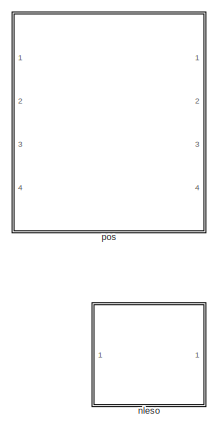
[diagram: root canvas - part 1/2, top right region]
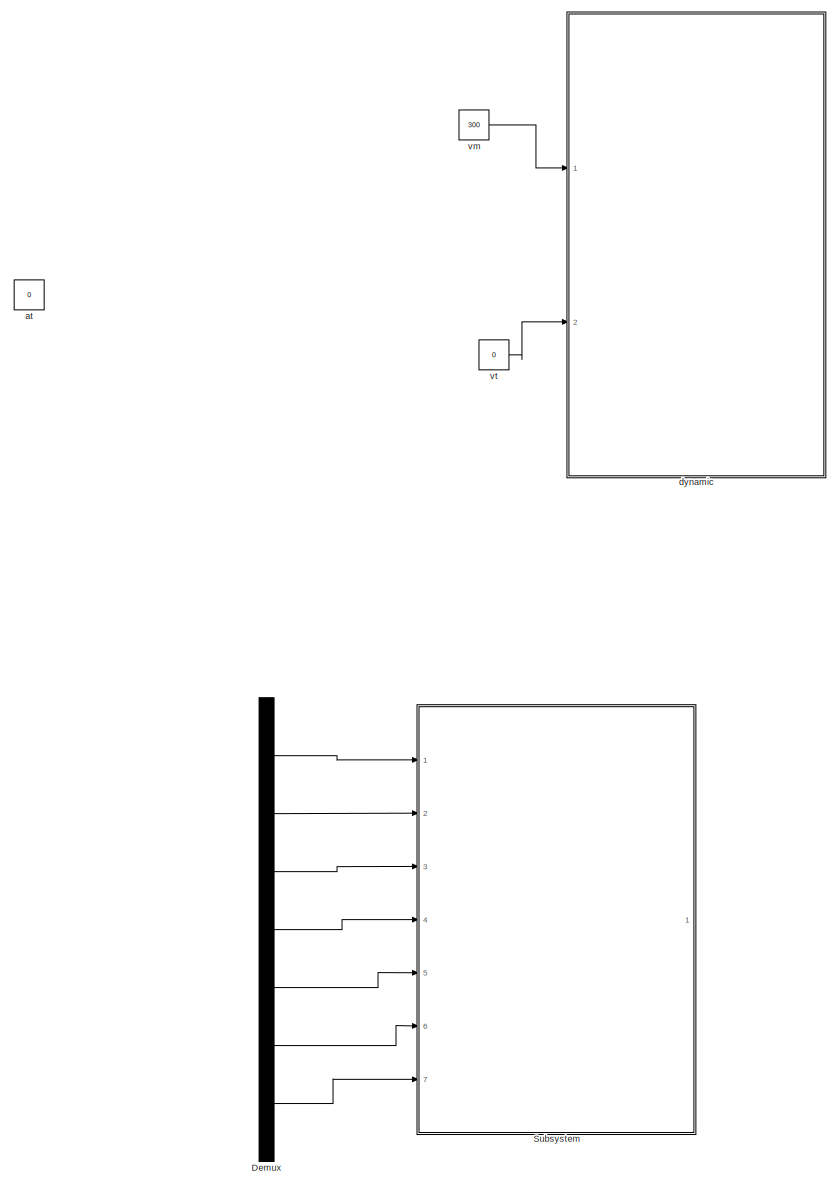
[diagram: root canvas - part 2/2, left side, full height]
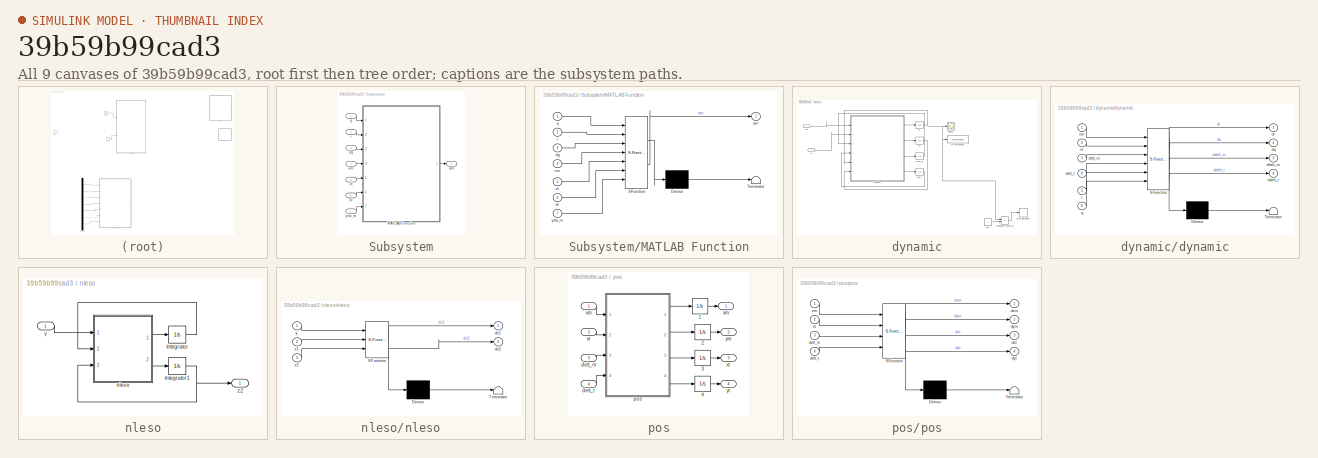
[diagram: thumbnail index - all 9 canvases of the model, root first then tree order]
MODEL slx_39b59b99cad3
KIND model
CONFIG AbsTol = auto
CONFIG EnableMultiTasking = off
CONFIG FixedStep = auto
CONFIG MaxStep = auto
CONFIG MinStep = auto
CONFIG RelTol = 1e-3
CONFIG SampleTimeConstraint = Unconstrained
CONFIG SolverName = VariableStepAuto
CONFIG StartTime = 0.0
CONFIG StopTime = 10.0
BLOCK [Demux] Demux
  Outputs = 7
  Ports = [1, 7]
BLOCK [SubSystem] Subsystem
  Ports = [7, 1]
  RequestExecContextInheritance = off
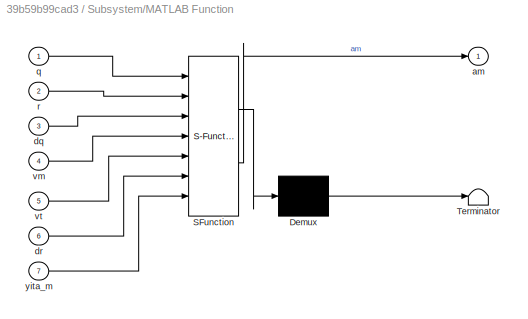
BLOCK [SubSystem] Subsystem/MATLAB Function
  ErrorFcn = Stateflow.Translate.translate
  PermitHierarchicalResolution = ExplicitOnly
  Ports = [7, 1]
  RequestExecContextInheritance = off
  SFBlockType = MATLAB Function
  TreatAsAtomicUnit = on
BLOCK [Demux] Subsystem/MATLAB Function/ Demux 
  Outputs = 1
  Ports = [1, 1]
BLOCK [S-Function] Subsystem/MATLAB Function/ SFunction 
  EnableBusSupport = on
  FunctionName = sf_sfun
  PortCounts = [7 2]
  Ports = [7, 2]
  SFcnIsStateOwnerBlock = off
  SFunctionDeploymentMode = off
  Tag = Stateflow S-Function 4
BLOCK [Terminator] Subsystem/MATLAB Function/ Terminator 
BLOCK [Outport] Subsystem/MATLAB Function/am
BLOCK [Inport] Subsystem/MATLAB Function/dq
  Port = 3
BLOCK [Inport] Subsystem/MATLAB Function/dr
  Port = 6
BLOCK [Inport] Subsystem/MATLAB Function/q
BLOCK [Inport] Subsystem/MATLAB Function/r
  Port = 2
BLOCK [Inport] Subsystem/MATLAB Function/vm
  Port = 4
BLOCK [Inport] Subsystem/MATLAB Function/vt
  Port = 5
BLOCK [Inport] Subsystem/MATLAB Function/yita_m
  Port = 7
BLOCK [Outport] Subsystem/am
BLOCK [Inport] Subsystem/dq
  Port = 3
BLOCK [Inport] Subsystem/dr
  Port = 6
BLOCK [Inport] Subsystem/q
BLOCK [Inport] Subsystem/r
  Port = 2
BLOCK [Inport] Subsystem/vm
  Port = 4
BLOCK [Inport] Subsystem/vt
  Port = 5
BLOCK [Inport] Subsystem/yita_m
  Port = 7
BLOCK [Constant] at
  Value = 0
BLOCK [SubSystem] dynamic
  Ports = [2]
  RequestExecContextInheritance = off
BLOCK [Integrator] dynamic/Delt_m
  Ports = [1, 1]
BLOCK [Integrator] dynamic/Delt_t
  Ports = [1, 1]
BLOCK [Integrator] dynamic/Q
  Ports = [1, 1]
BLOCK [Integrator] dynamic/R
  InitialCondition = 10000
  Ports = [1, 1]
BLOCK [RelationalOperator] dynamic/Relational Operator
  InputSameDT = off
  Operator = <=
  OutDataTypeStr = boolean
  Ports = [2, 1]
  RndMeth = Simplest
BLOCK [Scope] dynamic/Scope
  Floating = off
  NumInputPorts = 1
  Ports = [1]
  ScopeSpecificationString = Simulink.scopes.TimeScopeBlockCfg('CurrentConfiguration', extmgr.ConfigurationSet(extmgr.Configuration('Core','General UI',true),extmgr.Configuration('Core','Source UI',true),extmgr.Configuration('Sources','WiredSimulink',true),extmgr.Configuration('Visuals','Time Domain',true,'SerializedDisplays',{struct('MinYLimReal','8682.00614','MaxYLimReal','10146.44376','YLabelReal','','MinYLimMag','8682.006...<+1347ch>
BLOCK [Stop] dynamic/Stop Simulation
  NameLocation = left
BLOCK [ToWorkspace] dynamic/To Workspace
  FixptAsFi = on
  MaxDataPoints = inf
  Ports = [1]
  SampleTime = -1
  SaveFormat = Timeseries
  VariableName = simout
BLOCK [Constant] dynamic/at1
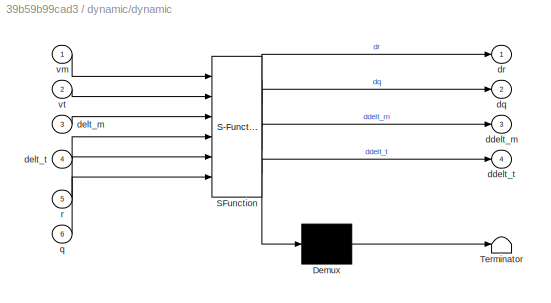
BLOCK [SubSystem] dynamic/dynamic
  ErrorFcn = Stateflow.Translate.translate
  PermitHierarchicalResolution = ExplicitOnly
  Ports = [6, 4]
  RequestExecContextInheritance = off
  SFBlockType = MATLAB Function
  TreatAsAtomicUnit = on
BLOCK [Demux] dynamic/dynamic/ Demux 
  Outputs = 1
  Ports = [1, 1]
BLOCK [S-Function] dynamic/dynamic/ SFunction 
  EnableBusSupport = on
  FunctionName = sf_sfun
  PortCounts = [6 5]
  Ports = [6, 5]
  SFcnIsStateOwnerBlock = off
  SFunctionDeploymentMode = off
  Tag = Stateflow S-Function 2
BLOCK [Terminator] dynamic/dynamic/ Terminator 
BLOCK [Outport] dynamic/dynamic/ddelt_m
  Port = 3
BLOCK [Outport] dynamic/dynamic/ddelt_t
  Port = 4
BLOCK [Inport] dynamic/dynamic/delt_m
  Port = 3
BLOCK [Inport] dynamic/dynamic/delt_t
  Port = 4
BLOCK [Outport] dynamic/dynamic/dq
  Port = 2
BLOCK [Outport] dynamic/dynamic/dr
BLOCK [Inport] dynamic/dynamic/q
  Port = 6
BLOCK [Inport] dynamic/dynamic/r
  Port = 5
BLOCK [Inport] dynamic/dynamic/vm
BLOCK [Inport] dynamic/dynamic/vt
  Port = 2
BLOCK [Inport] dynamic/vm
BLOCK [Inport] dynamic/vt
  Port = 2
BLOCK [SubSystem] nleso
  Ports = [1, 1]
  RequestExecContextInheritance = off
BLOCK [Integrator] nleso/Integrator
  Ports = [1, 1]
BLOCK [Integrator] nleso/Integrator1
  Ports = [1, 1]
BLOCK [SubSystem] nleso/nleso
  ErrorFcn = Stateflow.Translate.translate
  PermitHierarchicalResolution = ExplicitOnly
  Ports = [3, 2]
  RequestExecContextInheritance = off
  SFBlockType = MATLAB Function
  TreatAsAtomicUnit = on
BLOCK [Demux] nleso/nleso/ Demux 
  Outputs = 1
  Ports = [1, 1]
BLOCK [S-Function] nleso/nleso/ SFunction 
  EnableBusSupport = on
  FunctionName = sf_sfun
  PortCounts = [3 3]
  Ports = [3, 3]
  SFcnIsStateOwnerBlock = off
  SFunctionDeploymentMode = off
  Tag = Stateflow S-Function 3
BLOCK [Terminator] nleso/nleso/ Terminator 
BLOCK [Outport] nleso/nleso/dz1
BLOCK [Outport] nleso/nleso/dz2
  Port = 2
BLOCK [Inport] nleso/nleso/y
BLOCK [Inport] nleso/nleso/z1
  Port = 2
BLOCK [Inport] nleso/nleso/z2
  Port = 3
BLOCK [Inport] nleso/y
BLOCK [Outport] nleso/z2
BLOCK [SubSystem] pos
  Ports = [4, 4]
  RequestExecContextInheritance = off
BLOCK [Integrator] pos/1
  Ports = [1, 1]
BLOCK [Integrator] pos/2
  Ports = [1, 1]
BLOCK [Integrator] pos/3
  Ports = [1, 1]
BLOCK [Integrator] pos/4
  Ports = [1, 1]
BLOCK [Inport] pos/delt_m
  Port = 3
BLOCK [Inport] pos/delt_t
  Port = 4
BLOCK [SubSystem] pos/pos
  ErrorFcn = Stateflow.Translate.translate
  PermitHierarchicalResolution = ExplicitOnly
  Ports = [4, 4]
  RequestExecContextInheritance = off
  SFBlockType = MATLAB Function
  TreatAsAtomicUnit = on
BLOCK [Demux] pos/pos/ Demux 
  Outputs = 1
  Ports = [1, 1]
BLOCK [S-Function] pos/pos/ SFunction 
  EnableBusSupport = on
  FunctionName = sf_sfun
  PortCounts = [4 5]
  Ports = [4, 5]
  SFcnIsStateOwnerBlock = off
  SFunctionDeploymentMode = off
  Tag = Stateflow S-Function 1
BLOCK [Terminator] pos/pos/ Terminator 
BLOCK [Inport] pos/pos/delt_m
  Port = 3
BLOCK [Inport] pos/pos/delt_t
  Port = 4
BLOCK [Outport] pos/pos/dxm
BLOCK [Outport] pos/pos/dxt
  Port = 3
BLOCK [Outport] pos/pos/dym
  Port = 2
BLOCK [Outport] pos/pos/dyt
  Port = 4
BLOCK [Inport] pos/pos/vm
BLOCK [Inport] pos/pos/vt
  Port = 2
BLOCK [Inport] pos/vm
BLOCK [Inport] pos/vt
  Port = 2
BLOCK [Outport] pos/xm
BLOCK [Outport] pos/xt
  Port = 3
BLOCK [Outport] pos/ym
  Port = 2
BLOCK [Outport] pos/yt
  Port = 4
BLOCK [Constant] vm
  Value = 300
BLOCK [Constant] vt
  Value = 0
LINE Demux:1 -> Subsystem:1
LINE Demux:2 -> Subsystem:2
LINE Demux:3 -> Subsystem:3
LINE Demux:4 -> Subsystem:4
LINE Demux:5 -> Subsystem:5
LINE Demux:6 -> Subsystem:6
LINE Demux:7 -> Subsystem:7
LINE Subsystem/MATLAB Function:1 -> Subsystem/am:1
LINE Subsystem/dq:1 -> Subsystem/MATLAB Function:3
LINE Subsystem/dr:1 -> Subsystem/MATLAB Function:6
LINE Subsystem/q:1 -> Subsystem/MATLAB Function:1
LINE Subsystem/r:1 -> Subsystem/MATLAB Function:2
LINE Subsystem/vm:1 -> Subsystem/MATLAB Function:4
LINE Subsystem/vt:1 -> Subsystem/MATLAB Function:5
LINE Subsystem/yita_m:1 -> Subsystem/MATLAB Function:7
LINE dynamic/Delt_m:1 -> dynamic/dynamic:3
LINE dynamic/Delt_t:1 -> dynamic/dynamic:4
LINE dynamic/Q:1 -> dynamic/dynamic:6
NET dynamic/R:1 -> dynamic/Relational Operator:1, dynamic/Scope:1, dynamic/To Workspace:1, dynamic/dynamic:5
LINE dynamic/Relational Operator:1 -> dynamic/Stop Simulation:1
LINE dynamic/at1:1 -> dynamic/Relational Operator:2
LINE dynamic/dynamic:1 -> dynamic/R:1
LINE dynamic/dynamic:2 -> dynamic/Q:1
LINE dynamic/dynamic:3 -> dynamic/Delt_m:1
LINE dynamic/dynamic:4 -> dynamic/Delt_t:1
LINE dynamic/vm:1 -> dynamic/dynamic:1
LINE dynamic/vt:1 -> dynamic/dynamic:2
NET nleso/Integrator1:1 -> nleso/nleso:3, nleso/z2:1
LINE nleso/Integrator:1 -> nleso/nleso:2
LINE nleso/nleso:1 -> nleso/Integrator:1
LINE nleso/nleso:2 -> nleso/Integrator1:1
LINE nleso/y:1 -> nleso/nleso:1
LINE pos/1:1 -> pos/xm:1
LINE pos/2:1 -> pos/ym:1
LINE pos/3:1 -> pos/xt:1
LINE pos/4:1 -> pos/yt:1
LINE pos/delt_m:1 -> pos/pos:3
LINE pos/delt_t:1 -> pos/pos:4
LINE pos/pos:1 -> pos/1:1
LINE pos/pos:2 -> pos/2:1
LINE pos/pos:3 -> pos/3:1
LINE pos/pos:4 -> pos/4:1
LINE pos/vm:1 -> pos/pos:1
LINE pos/vt:1 -> pos/pos:2
LINE vm:1 -> dynamic:1
LINE vt:1 -> dynamic:2
note: NET lines group one-source signal fan-out (src -> all destinations, sorted); 1:1 wires keep LINE
CHART pos/pos states=1 transitions=1
  STATE_LABEL 'eML_blk_kernel()'
  STATE_LABEL 'SCRIPT:\nfunction [dxm,dym,dxt,dyt] = fcn(vm,vt,delt_m,delt_t)\n\n\ndxm = vm * cos(delt_m);\n\ndym = vm * sin(delt_m);\n\ndxt = vt * cos(delt_t);\n\ndyt = vt * sin(delt_t);\n\nend\n\n\n\n\n'
CHART dynamic/dynamic states=1 transitions=1
  STATE_LABEL 'eML_blk_kernel()'
  STATE_LABEL 'SCRIPT:\nfunction [dr,dq,ddelt_m,ddelt_t] = fcn(vm,vt,delt_m,delt_t,r,q)\n\nyita_m = q - delt_m;\n\nyita_t = q - delt_t;\n\n\n\ndr = -vm * cos(yita_m) + vt * cos(yita_t);\n\ndq = (vm * sin(yita_m) - vt *sin(yita_t)) /r;\n\n\n\n\n\n\nyita_m_max = 45 * pi / 180; % 45\nsigema = 0.1;\nqd = -90 * pi / 180;\nk1 = 2;\n\n% 假如观测器之后这里需要进行改到k2\nk2 = 0.2;\n\nkc = vm * sin(yita_m_max) - vt;\n\nx1 = q - qd;\n\nx2 = r * dq;\n\n\n\n\n\n\nm1 = ( -kc ...<+491ch>'
CHART nleso/nleso states=1 transitions=1
  STATE_LABEL 'eML_blk_kernel()'
  STATE_LABEL 'SCRIPT:\nfunction [dz1,dz2] = fcn(y,z1,z2)\n\n% yita gama (0,1) \n% a1 a2 >0\na1 = 2;\na2 = 1;\nyita = 0.05;\ngama = 0.75;\ndz1 = z2 + a1 * (abs((y-z1)/yita))^gama * sign(y - z1);\n\ndz2 = a2/yita * (abs((y-z1)/yita))^(2 * gama -1) * sign(y - z1);\n\nend\n'
CHART Subsystem/MATLAB Function states=1 transitions=1
  STATE_LABEL 'eML_blk_kernel()'
  STATE_LABEL 'SCRIPT:\nfunction am = fcn(q,r,dq,vm,vt,dr,yita_m)\n\n% q r dq vm vt dr yita_m\n\n\nyita_m_max = 45 * pi / 180; % 45\nsigema = 0.1;\nqd = -90 * pi / 180;\nk1 = 2;\n\n% 假如观测器之后这里需要进行改到k2\nk2 = 0.2;\n\nkc = vm * sin(yita_m_max) - vt;\n\nx1 = q - qd;\n\nx2 = r * dq;\n\n\n\nm1 = ( -kc * abs(x1) / (abs(x1) + sigema)^2 + kc / (abs(x1) + sigema) -dr)*(x2/r);\n\n\n\nda1 = ((-kc * abs(x1) / (abs(x1) + sigema)^2) - (kc / (abs(x1) + ...<+296ch>'
CHART  states=0 transitions=0
CHART  states=0 transitions=0
CHART  states=0 transitions=0
CHART  states=0 transitions=0
